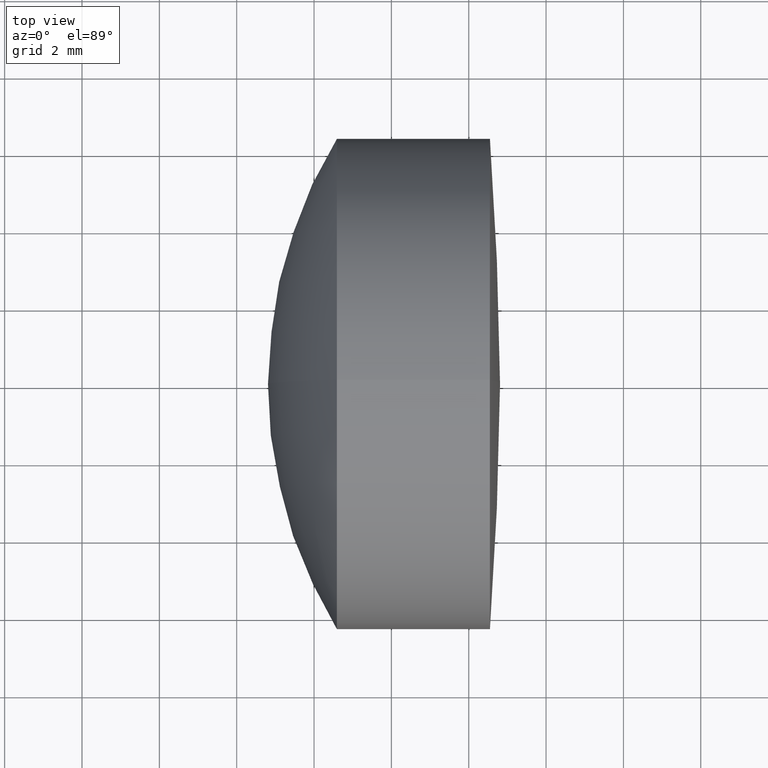
[diagram: clean part render]
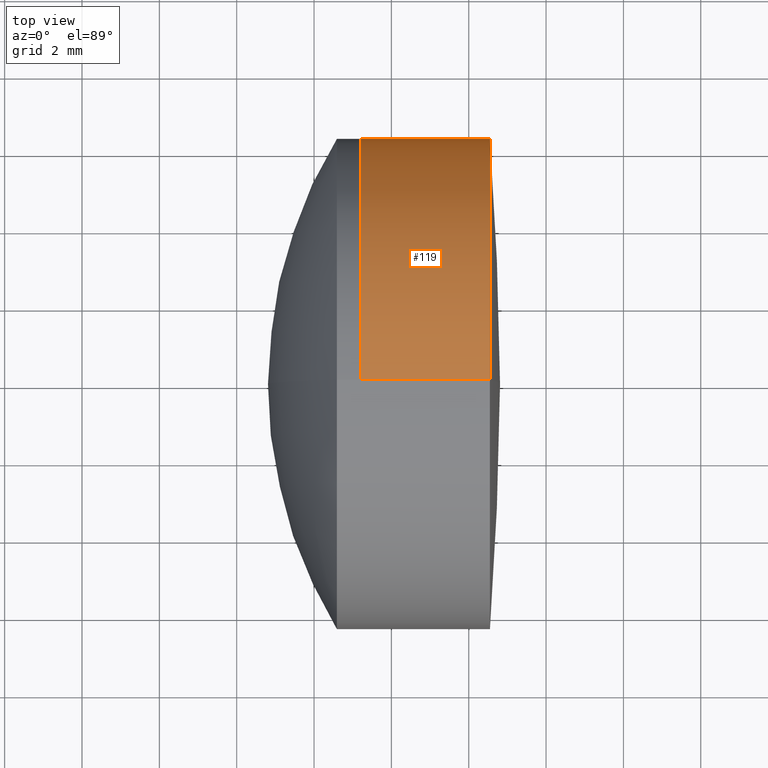
[diagram: same view with one face highlighted and labeled with its STEP entity id]
A machine part, top view. The second image highlights one B-rep face of the part: STEP entity #119.
In plain terms, the highlighted cylindrical surface (partial cylindrical patch) has radius 6.35 mm, axis along (-1, -0, -0).
Its self-contained STEP definition (entity closure, byte-faithful):
#14 = VECTOR ( 'NONE', #337, 1000.000000000000000 ) ;
#24 = CARTESIAN_POINT ( 'NONE',  ( 269.1964474457524300, 0.0000000000000000000, 0.0000000000000000000 ) ) ;
#26 = CARTESIAN_POINT ( 'NONE',  ( 269.1964474457524300, 0.0000000000000000000, 6.349999999999997000 ) ) ;
#28 = EDGE_CURVE ( 'NONE', #87, #33, #325, .T. ) ;
#33 = VERTEX_POINT ( 'NONE', #49 ) ;
#34 = DIRECTION ( 'NONE',  ( 0.0000000000000000000, 0.0000000000000000000, 1.000000000000000000 ) ) ;
#44 = VECTOR ( 'NONE', #80, 1000.000000000000000 ) ;
#47 = EDGE_CURVE ( 'NONE', #134, #163, #129, .T. ) ;
#49 = CARTESIAN_POINT ( 'NONE',  ( 272.5480355923398900, 7.776507174585696100E-016, -6.350000000000002300 ) ) ;
#65 = CARTESIAN_POINT ( 'NONE',  ( -0.5519199926577972300, 0.0000000000000000000, 0.0000000000000000000 ) ) ;
#80 = DIRECTION ( 'NONE',  ( -1.000000000000000000, -0.0000000000000000000, -0.0000000000000000000 ) ) ;
#83 = DIRECTION ( 'NONE',  ( 0.0000000000000000000, 0.0000000000000000000, 1.000000000000000000 ) ) ;
#87 = VERTEX_POINT ( 'NONE', #161 ) ;
#89 = CARTESIAN_POINT ( 'NONE',  ( 269.1964474457524300, 7.776507174585689200E-016, -6.350000000000000500 ) ) ;
#112 = CARTESIAN_POINT ( 'NONE',  ( 272.5480355923398900, 0.0000000000000000000, 0.0000000000000000000 ) ) ;
#119 = ADVANCED_FACE ( 'NONE', ( #226 ), #167, .T. ) ;
#120 = EDGE_LOOP ( 'NONE', ( #219, #169, #317, #127 ) ) ;
#127 = ORIENTED_EDGE ( 'NONE', *, *, #146, .F. ) ;
#129 = CIRCLE ( 'NONE', #319, 6.349999999999997000 ) ;
#134 = VERTEX_POINT ( 'NONE', #26 ) ;
#146 = EDGE_CURVE ( 'NONE', #87, #134, #314, .T. ) ;
#151 = CARTESIAN_POINT ( 'NONE',  ( -0.5519199926577972300, 7.776507174585692200E-016, -6.349999999999999600 ) ) ;
#161 = CARTESIAN_POINT ( 'NONE',  ( 272.5480355923398900, 0.0000000000000000000, 6.350000000000002300 ) ) ;
#163 = VERTEX_POINT ( 'NONE', #89 ) ;
#167 = CYLINDRICAL_SURFACE ( 'NONE', #333, 6.349999999999999600 ) ;
#169 = ORIENTED_EDGE ( 'NONE', *, *, #224, .T. ) ;
#219 = ORIENTED_EDGE ( 'NONE', *, *, #28, .T. ) ;
#224 = EDGE_CURVE ( 'NONE', #33, #163, #264, .T. ) ;
#226 = FACE_OUTER_BOUND ( 'NONE', #120, .T. ) ;
#241 = DIRECTION ( 'NONE',  ( -1.000000000000000000, -0.0000000000000000000, -0.0000000000000000000 ) ) ;
#243 = DIRECTION ( 'NONE',  ( -1.000000000000000000, -0.0000000000000000000, -0.0000000000000000000 ) ) ;
#264 = LINE ( 'NONE', #151, #14 ) ;
#273 = AXIS2_PLACEMENT_3D ( 'NONE', #112, #243, #34 ) ;
#279 = DIRECTION ( 'NONE',  ( -1.000000000000000000, -0.0000000000000000000, -0.0000000000000000000 ) ) ;
#314 = LINE ( 'NONE', #315, #44 ) ;
#315 = CARTESIAN_POINT ( 'NONE',  ( -0.5519199926577972300, 0.0000000000000000000, 6.349999999999999600 ) ) ;
#317 = ORIENTED_EDGE ( 'NONE', *, *, #47, .F. ) ;
#318 = DIRECTION ( 'NONE',  ( 0.0000000000000000000, 0.0000000000000000000, 1.000000000000000000 ) ) ;
#319 = AXIS2_PLACEMENT_3D ( 'NONE', #24, #279, #83 ) ;
#325 = CIRCLE ( 'NONE', #273, 6.350000000000002300 ) ;
#333 = AXIS2_PLACEMENT_3D ( 'NONE', #65, #241, #318 ) ;
#337 = DIRECTION ( 'NONE',  ( -1.000000000000000000, -0.0000000000000000000, -0.0000000000000000000 ) ) ;